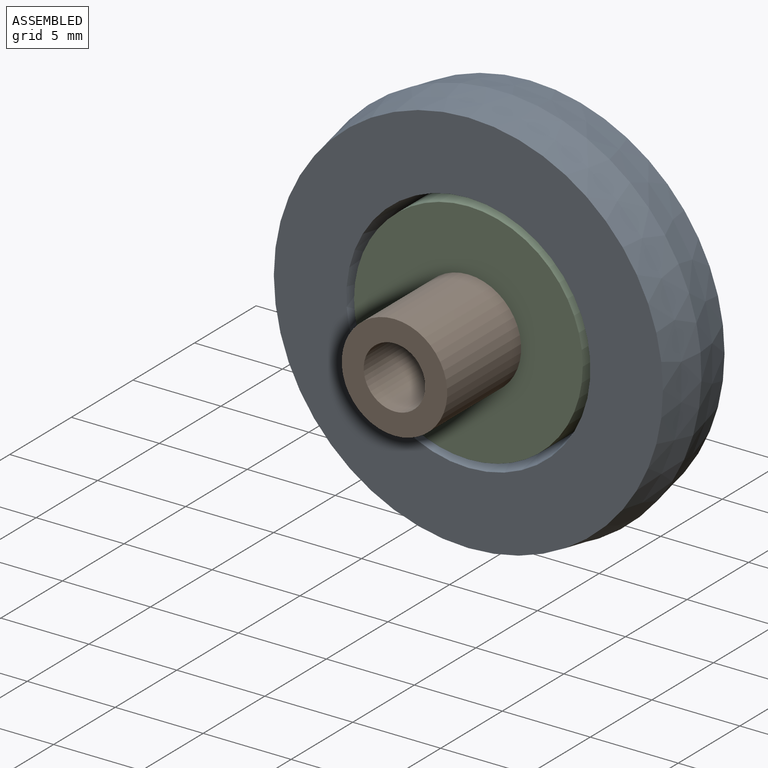
[diagram: assembled view]
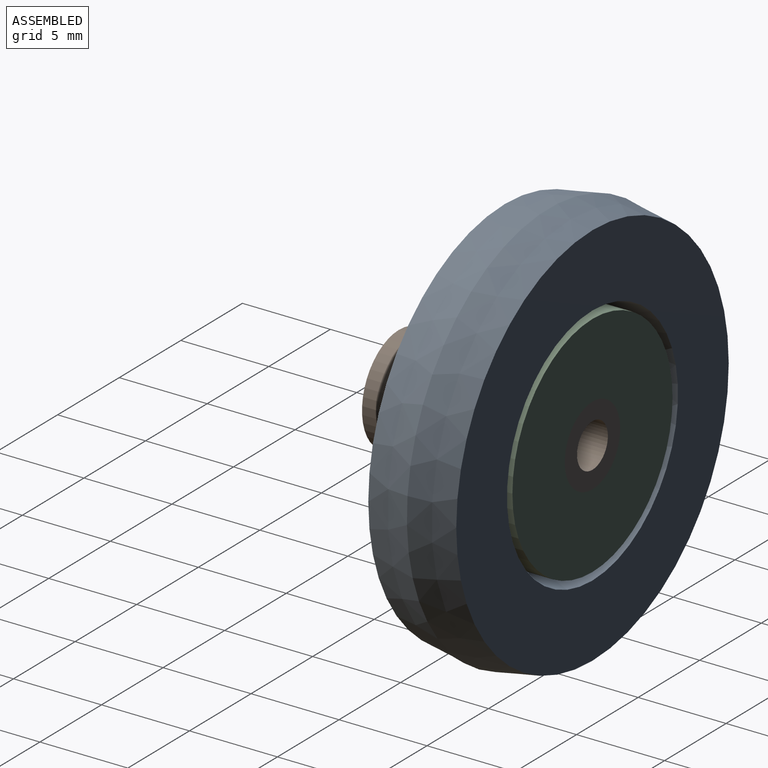
[diagram: assembled view, second angle]
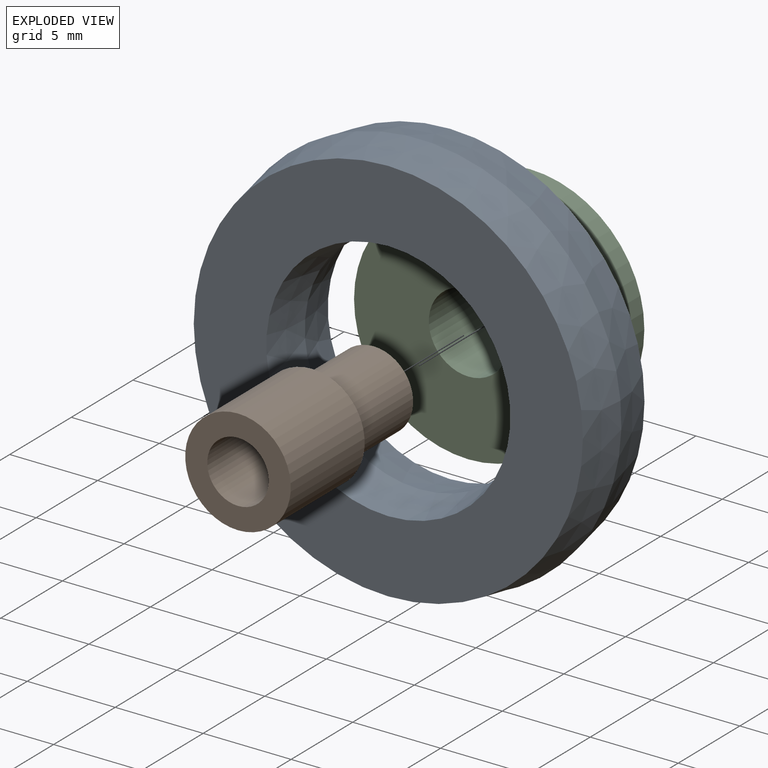
[diagram: exploded view]
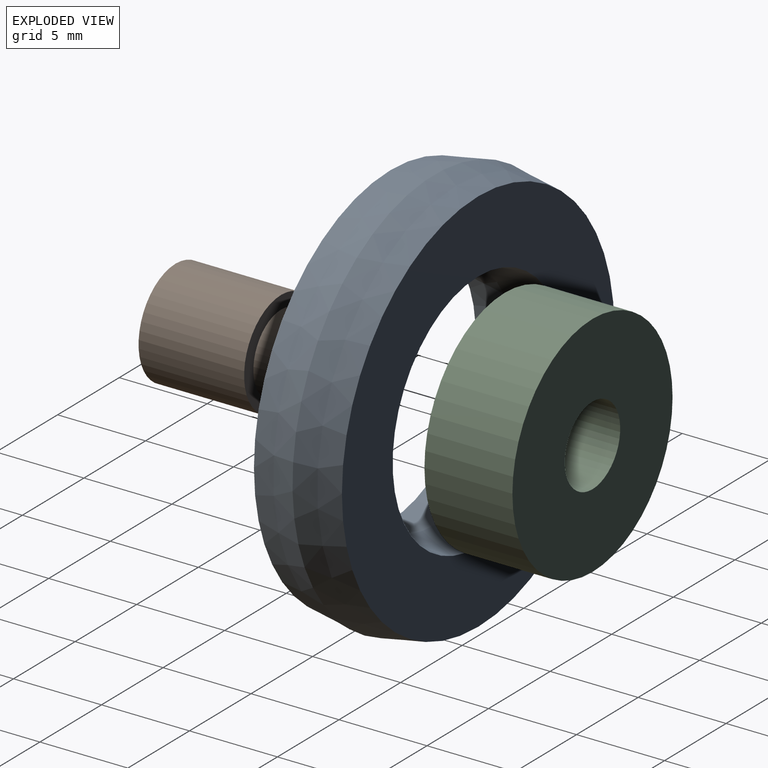
[diagram: exploded view, second angle]
ASSEMBLY  parts=3 mates=2
PART A: 6 faces, bbox 23x5x23 mm
  f0: cone r=6.5mm half-angle=10deg, axis (0,-1,0), area 107.2mm2, adj f1,f3
  f1: plane 22.12x22.12mm, normal (0,-1,0), area 232.9mm2, adj f0,f2
  f2: cone r=11.5mm half-angle=10deg, axis (0,1,0), area 179.9mm2, adj f1,f4
  f3: cone r=6.5mm half-angle=10deg, axis (0,1,0), area 107.2mm2, adj f0,f5
  f4: cone r=11.5mm half-angle=10deg, axis (0,-1,0), area 179.9mm2, adj f2,f5
  f5: plane 22.12x22.12mm, normal (0,1,0), area 232.9mm2, adj f3,f4
PART B: 9 faces, bbox 6x11x6 mm
  f0: cone r=0mm half-angle=59deg, axis (0,-1,0), area 4.1mm2, adj f6,f7
  f1: cylinder r=3mm len=6mm, axis (0,-1,0), area 113.1mm2, adj f2,f3
  f2: plane 6x6mm, normal (0,1,0), area 18.7mm2, adj f1,f8
  f3: plane 6x6mm, normal (0,-1,0), area 12.4mm2, adj f1,f4
  f4: cylinder r=2.25mm len=5mm, axis (0,1,0), area 70.7mm2, adj f3,f5
  f5: plane 4.5x4.5mm, normal (0,-1,0), area 11mm2, adj f4,f6
  f6: cylinder r=1.25mm len=5mm, axis (0,-1,0), area 39.3mm2, adj f0,f5
  f7: cone r=0mm half-angle=59deg, axis (0,1,0), area 9.6mm2, adj f0,f8
  f8: cylinder r=1.75mm len=5mm, axis (0,1,0), area 55mm2, adj f2,f7
PART C: 4 faces, bbox 13x5x13 mm
  f0: cylinder r=2.25mm len=5mm, axis (0,1,0), area 70.7mm2, adj f2,f3
  f1: cylinder r=6.5mm len=13mm, axis (0,1,0), area 204.2mm2, adj f2,f3
  f2: plane 13x13mm, normal (0,-1,0), area 116.8mm2, adj f0,f1
  f3: plane 13x13mm, normal (0,1,0), area 116.8mm2, adj f0,f1
PLACE A t=(-0.41,-0.38,-0.21)mm
PLACE B rot(axis=(1,0,0),180deg) t=(-0.41,-2.88,-0.21)mm
PLACE C t=(-0.41,-0.38,-0.21)mm
MATE fastened B.f0 <-> C.f1  axis (0,-1,0) through (-0.41,-2.88,-0.21)mm
MATE fastened C.f1 <-> A.f2  axis (0,-1,0) through (-0.41,-2.88,-0.21)mm
